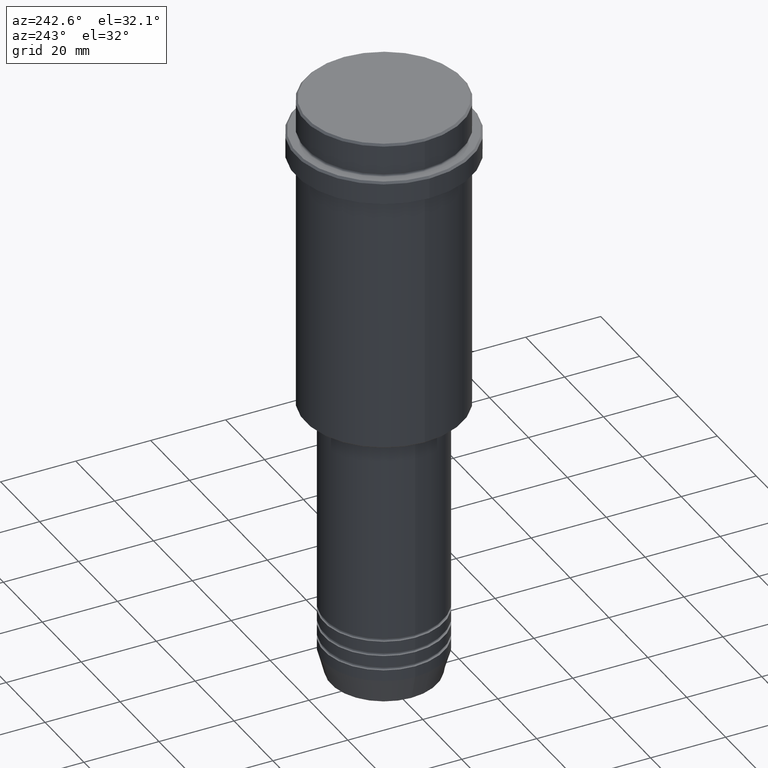
[diagram: clean part render]
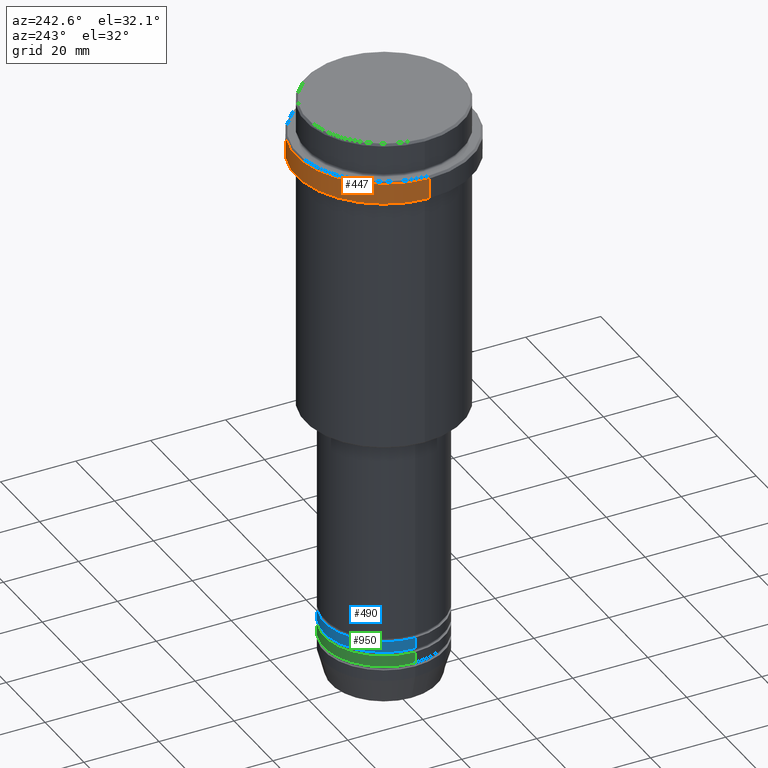
[diagram: same view with three faces highlighted in distinct colors, each labeled with its STEP entity id]
A machine part, auxiliary view with three faces highlighted in distinct colors.
Their STEP definitions:

[orange] entity #447 — the highlighted cylindrical surface (partial cylindrical patch) has radius 23.5 mm, axis along (-0, -0, 1).
#50 = VERTEX_POINT ( 'NONE', #640 ) ;
#203 = FACE_OUTER_BOUND ( 'NONE', #824, .T. ) ;
#209 = DIRECTION ( 'NONE',  ( -0.000000000000000000, -0.000000000000000000, 1.000000000000000000 ) ) ;
#265 = VECTOR ( 'NONE', #1163, 1000.000000000000000 ) ;
#283 = AXIS2_PLACEMENT_3D ( 'NONE', #969, #209, #851 ) ;
#296 = CARTESIAN_POINT ( 'NONE',  ( -23.50000000000000711, 2.877919977996281109E-15, -15.00000000000000000 ) ) ;
#308 = CARTESIAN_POINT ( 'NONE',  ( 23.50000000000000000, 0.000000000000000000, -9.500000000000000000 ) ) ;
#333 = AXIS2_PLACEMENT_3D ( 'NONE', #904, #473, #365 ) ;
#365 = DIRECTION ( 'NONE',  ( 1.000000000000000000, 0.000000000000000000, 0.000000000000000000 ) ) ;
#375 = CIRCLE ( 'NONE', #579, 23.50000000000000355 ) ;
#402 = ORIENTED_EDGE ( 'NONE', *, *, #880, .T. ) ;
#416 = CARTESIAN_POINT ( 'NONE',  ( 0.000000000000000000, 0.000000000000000000, -15.00000000000000000 ) ) ;
#444 = ORIENTED_EDGE ( 'NONE', *, *, #1128, .T. ) ;
#447 = ADVANCED_FACE ( 'NONE', ( #203 ), #741, .T. ) ;
#465 = CIRCLE ( 'NONE', #333, 23.50000000000000000 ) ;
#473 = DIRECTION ( 'NONE',  ( 0.000000000000000000, 0.000000000000000000, -1.000000000000000000 ) ) ;
#524 = VERTEX_POINT ( 'NONE', #296 ) ;
#579 = AXIS2_PLACEMENT_3D ( 'NONE', #416, #747, #1060 ) ;
#609 = LINE ( 'NONE', #1278, #1019 ) ;
#640 = CARTESIAN_POINT ( 'NONE',  ( 23.50000000000000355, 0.000000000000000000, -15.00000000000000000 ) ) ;
#741 = CYLINDRICAL_SURFACE ( 'NONE', #283, 23.50000000000000000 ) ;
#747 = DIRECTION ( 'NONE',  ( -0.000000000000000000, -0.000000000000000000, 1.000000000000000000 ) ) ;
#824 = EDGE_LOOP ( 'NONE', ( #1391, #402, #444, #1059 ) ) ;
#851 = DIRECTION ( 'NONE',  ( 1.000000000000000000, 0.000000000000000000, 0.000000000000000000 ) ) ;
#880 = EDGE_CURVE ( 'NONE', #524, #1265, #609, .T. ) ;
#904 = CARTESIAN_POINT ( 'NONE',  ( 0.000000000000000000, 0.000000000000000000, -9.500000000000000000 ) ) ;
#916 = VERTEX_POINT ( 'NONE', #308 ) ;
#942 = EDGE_CURVE ( 'NONE', #50, #524, #375, .T. ) ;
#969 = CARTESIAN_POINT ( 'NONE',  ( 0.000000000000000000, 0.000000000000000000, 0.000000000000000000 ) ) ;
#1019 = VECTOR ( 'NONE', #1374, 1000.000000000000000 ) ;
#1053 = CARTESIAN_POINT ( 'NONE',  ( 23.50000000000000000, 0.000000000000000000, 0.000000000000000000 ) ) ;
#1059 = ORIENTED_EDGE ( 'NONE', *, *, #1386, .F. ) ;
#1060 = DIRECTION ( 'NONE',  ( 1.000000000000000000, 0.000000000000000000, 0.000000000000000000 ) ) ;
#1128 = EDGE_CURVE ( 'NONE', #1265, #916, #465, .T. ) ;
#1163 = DIRECTION ( 'NONE',  ( -0.000000000000000000, -0.000000000000000000, 1.000000000000000000 ) ) ;
#1177 = LINE ( 'NONE', #1053, #265 ) ;
#1265 = VERTEX_POINT ( 'NONE', #1272 ) ;
#1272 = CARTESIAN_POINT ( 'NONE',  ( -23.50000000000000000, 2.877919977996280320E-15, -9.500000000000000000 ) ) ;
#1278 = CARTESIAN_POINT ( 'NONE',  ( -23.50000000000000000, 2.877919977996280320E-15, 0.000000000000000000 ) ) ;
#1374 = DIRECTION ( 'NONE',  ( -0.000000000000000000, -0.000000000000000000, 1.000000000000000000 ) ) ;
#1386 = EDGE_CURVE ( 'NONE', #50, #916, #1177, .T. ) ;
#1391 = ORIENTED_EDGE ( 'NONE', *, *, #942, .T. ) ;

[blue] entity #490 — the highlighted cylindrical surface (partial cylindrical patch) has radius 16 mm, axis along (-0, -0, 1).
#122 = CARTESIAN_POINT ( 'NONE',  ( 0.000000000000000000, 0.000000000000000000, -144.9999999999999147 ) ) ;
#244 = VERTEX_POINT ( 'NONE', #1125 ) ;
#310 = CYLINDRICAL_SURFACE ( 'NONE', #556, 16.00000000000000000 ) ;
#406 = CARTESIAN_POINT ( 'NONE',  ( 16.00000000000000000, 0.000000000000000000, -144.9999999999999147 ) ) ;
#418 = CARTESIAN_POINT ( 'NONE',  ( 0.000000000000000000, 0.000000000000000000, 0.000000000000000000 ) ) ;
#422 = DIRECTION ( 'NONE',  ( -0.000000000000000000, -0.000000000000000000, 1.000000000000000000 ) ) ;
#435 = CIRCLE ( 'NONE', #651, 16.00000000000000000 ) ;
#452 = CARTESIAN_POINT ( 'NONE',  ( 16.00000000000000000, 0.000000000000000000, 0.000000000000000000 ) ) ;
#467 = ORIENTED_EDGE ( 'NONE', *, *, #1029, .T. ) ;
#477 = EDGE_CURVE ( 'NONE', #1122, #1011, #611, .T. ) ;
#490 = ADVANCED_FACE ( 'NONE', ( #1406 ), #310, .T. ) ;
#505 = VECTOR ( 'NONE', #615, 1000.000000000000000 ) ;
#556 = AXIS2_PLACEMENT_3D ( 'NONE', #418, #862, #842 ) ;
#564 = CARTESIAN_POINT ( 'NONE',  ( -16.00000000000000000, 1.959434878635765131E-15, -141.9999999999999147 ) ) ;
#611 = LINE ( 'NONE', #639, #505 ) ;
#612 = DIRECTION ( 'NONE',  ( 1.000000000000000000, 0.000000000000000000, 0.000000000000000000 ) ) ;
#615 = DIRECTION ( 'NONE',  ( -0.000000000000000000, -0.000000000000000000, 1.000000000000000000 ) ) ;
#629 = EDGE_LOOP ( 'NONE', ( #467, #799, #768, #650 ) ) ;
#639 = CARTESIAN_POINT ( 'NONE',  ( -16.00000000000000000, 1.959434878635765131E-15, 0.000000000000000000 ) ) ;
#650 = ORIENTED_EDGE ( 'NONE', *, *, #1075, .F. ) ;
#651 = AXIS2_PLACEMENT_3D ( 'NONE', #938, #1047, #612 ) ;
#656 = LINE ( 'NONE', #452, #1043 ) ;
#768 = ORIENTED_EDGE ( 'NONE', *, *, #1300, .F. ) ;
#787 = CIRCLE ( 'NONE', #859, 16.00000000000000000 ) ;
#799 = ORIENTED_EDGE ( 'NONE', *, *, #477, .T. ) ;
#813 = CARTESIAN_POINT ( 'NONE',  ( -16.00000000000000000, 1.959434878635765131E-15, -144.9999999999999147 ) ) ;
#842 = DIRECTION ( 'NONE',  ( 1.000000000000000000, 0.000000000000000000, 0.000000000000000000 ) ) ;
#859 = AXIS2_PLACEMENT_3D ( 'NONE', #122, #422, #1192 ) ;
#862 = DIRECTION ( 'NONE',  ( -0.000000000000000000, -0.000000000000000000, 1.000000000000000000 ) ) ;
#938 = CARTESIAN_POINT ( 'NONE',  ( 0.000000000000000000, 0.000000000000000000, -141.9999999999999147 ) ) ;
#1011 = VERTEX_POINT ( 'NONE', #564 ) ;
#1029 = EDGE_CURVE ( 'NONE', #1383, #1122, #787, .T. ) ;
#1043 = VECTOR ( 'NONE', #1084, 1000.000000000000000 ) ;
#1047 = DIRECTION ( 'NONE',  ( -0.000000000000000000, -0.000000000000000000, 1.000000000000000000 ) ) ;
#1075 = EDGE_CURVE ( 'NONE', #1383, #244, #656, .T. ) ;
#1084 = DIRECTION ( 'NONE',  ( -0.000000000000000000, -0.000000000000000000, 1.000000000000000000 ) ) ;
#1122 = VERTEX_POINT ( 'NONE', #813 ) ;
#1125 = CARTESIAN_POINT ( 'NONE',  ( 16.00000000000000000, 0.000000000000000000, -141.9999999999999147 ) ) ;
#1192 = DIRECTION ( 'NONE',  ( 1.000000000000000000, 0.000000000000000000, 0.000000000000000000 ) ) ;
#1300 = EDGE_CURVE ( 'NONE', #244, #1011, #435, .T. ) ;
#1383 = VERTEX_POINT ( 'NONE', #406 ) ;
#1406 = FACE_OUTER_BOUND ( 'NONE', #629, .T. ) ;

[green] entity #950 — the highlighted cylindrical surface (partial cylindrical patch) has radius 16 mm, axis along (-0, -0, 1).
#30 = VERTEX_POINT ( 'NONE', #1080 ) ;
#185 = DIRECTION ( 'NONE',  ( -0.000000000000000000, -0.000000000000000000, 1.000000000000000000 ) ) ;
#186 = EDGE_CURVE ( 'NONE', #30, #1318, #391, .T. ) ;
#370 = EDGE_CURVE ( 'NONE', #959, #30, #1237, .T. ) ;
#391 = CIRCLE ( 'NONE', #1194, 16.00000000000000000 ) ;
#398 = DIRECTION ( 'NONE',  ( 1.000000000000000000, 0.000000000000000000, 0.000000000000000000 ) ) ;
#439 = CIRCLE ( 'NONE', #1380, 16.00000000000000000 ) ;
#460 = VECTOR ( 'NONE', #1141, 1000.000000000000000 ) ;
#492 = ORIENTED_EDGE ( 'NONE', *, *, #771, .T. ) ;
#517 = LINE ( 'NONE', #739, #646 ) ;
#594 = DIRECTION ( 'NONE',  ( -0.000000000000000000, -0.000000000000000000, 1.000000000000000000 ) ) ;
#630 = CARTESIAN_POINT ( 'NONE',  ( 16.00000000000000000, 0.000000000000000000, -148.9999999999999147 ) ) ;
#646 = VECTOR ( 'NONE', #185, 1000.000000000000000 ) ;
#700 = CARTESIAN_POINT ( 'NONE',  ( 16.00000000000000000, 0.000000000000000000, 0.000000000000000000 ) ) ;
#726 = CARTESIAN_POINT ( 'NONE',  ( -16.00000000000000000, 1.959434878635765131E-15, -145.9999999999999147 ) ) ;
#734 = ORIENTED_EDGE ( 'NONE', *, *, #899, .T. ) ;
#739 = CARTESIAN_POINT ( 'NONE',  ( -16.00000000000000000, 1.959434878635765131E-15, 0.000000000000000000 ) ) ;
#762 = ORIENTED_EDGE ( 'NONE', *, *, #186, .F. ) ;
#771 = EDGE_CURVE ( 'NONE', #959, #1004, #439, .T. ) ;
#780 = CARTESIAN_POINT ( 'NONE',  ( 0.000000000000000000, 0.000000000000000000, -145.9999999999999147 ) ) ;
#784 = ORIENTED_EDGE ( 'NONE', *, *, #370, .F. ) ;
#806 = CARTESIAN_POINT ( 'NONE',  ( 0.000000000000000000, 0.000000000000000000, -148.9999999999999147 ) ) ;
#841 = CYLINDRICAL_SURFACE ( 'NONE', #1114, 16.00000000000000000 ) ;
#890 = CARTESIAN_POINT ( 'NONE',  ( -16.00000000000000000, 1.959434878635765131E-15, -148.9999999999999147 ) ) ;
#899 = EDGE_CURVE ( 'NONE', #1004, #1318, #517, .T. ) ;
#909 = DIRECTION ( 'NONE',  ( -0.000000000000000000, -0.000000000000000000, 1.000000000000000000 ) ) ;
#945 = CARTESIAN_POINT ( 'NONE',  ( 0.000000000000000000, 0.000000000000000000, 0.000000000000000000 ) ) ;
#950 = ADVANCED_FACE ( 'NONE', ( #1179 ), #841, .T. ) ;
#959 = VERTEX_POINT ( 'NONE', #630 ) ;
#1004 = VERTEX_POINT ( 'NONE', #890 ) ;
#1070 = EDGE_LOOP ( 'NONE', ( #492, #734, #762, #784 ) ) ;
#1080 = CARTESIAN_POINT ( 'NONE',  ( 16.00000000000000000, 0.000000000000000000, -145.9999999999999147 ) ) ;
#1114 = AXIS2_PLACEMENT_3D ( 'NONE', #945, #1382, #398 ) ;
#1140 = DIRECTION ( 'NONE',  ( 1.000000000000000000, 0.000000000000000000, 0.000000000000000000 ) ) ;
#1141 = DIRECTION ( 'NONE',  ( -0.000000000000000000, -0.000000000000000000, 1.000000000000000000 ) ) ;
#1179 = FACE_OUTER_BOUND ( 'NONE', #1070, .T. ) ;
#1194 = AXIS2_PLACEMENT_3D ( 'NONE', #780, #909, #1227 ) ;
#1227 = DIRECTION ( 'NONE',  ( 1.000000000000000000, 0.000000000000000000, 0.000000000000000000 ) ) ;
#1237 = LINE ( 'NONE', #700, #460 ) ;
#1318 = VERTEX_POINT ( 'NONE', #726 ) ;
#1380 = AXIS2_PLACEMENT_3D ( 'NONE', #806, #594, #1140 ) ;
#1382 = DIRECTION ( 'NONE',  ( -0.000000000000000000, -0.000000000000000000, 1.000000000000000000 ) ) ;